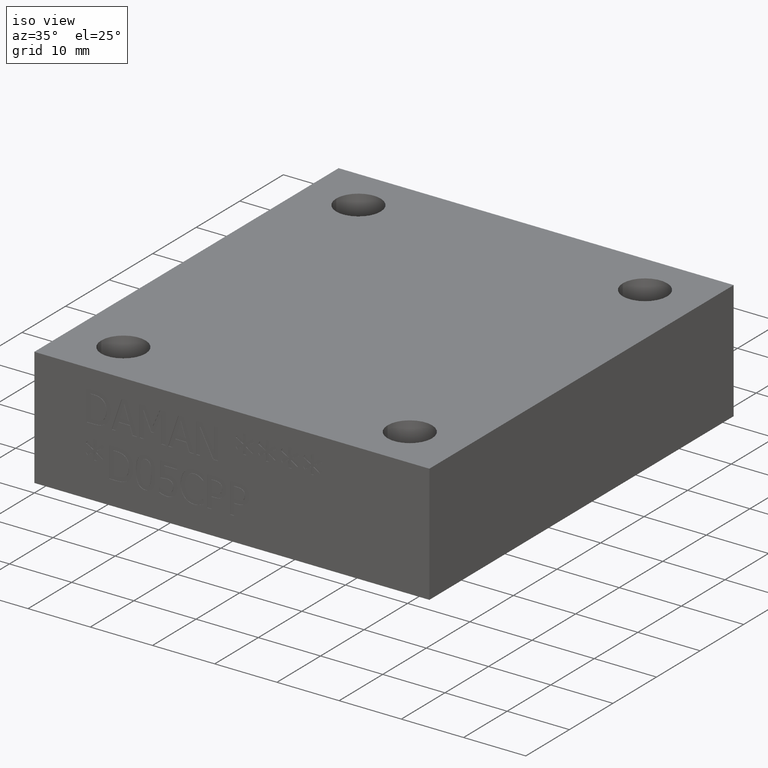
[diagram: clean part render]
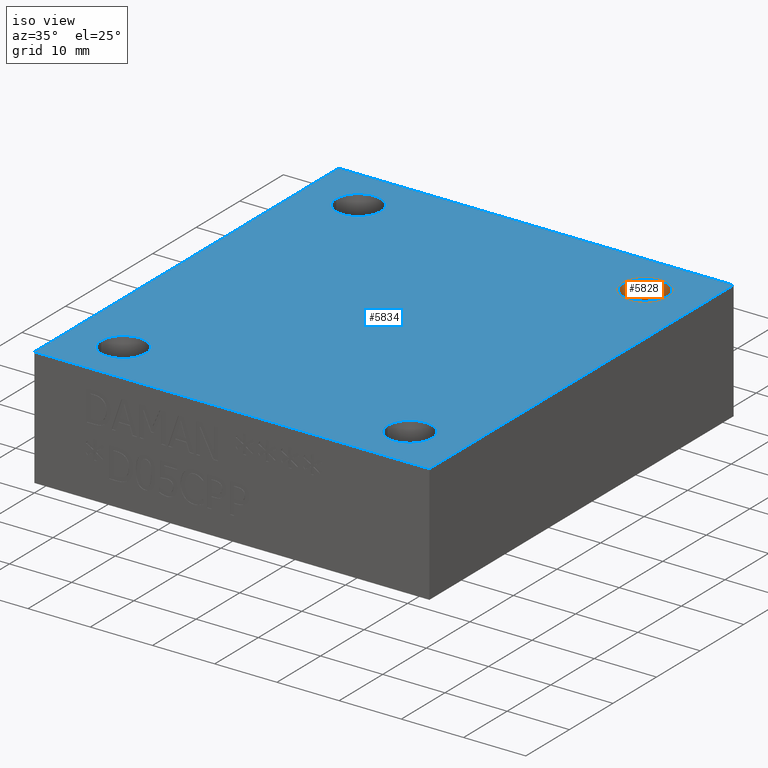
[diagram: same view with the hole feature highlighted: cylindrical wall and planar end face, labeled with their STEP entity ids]
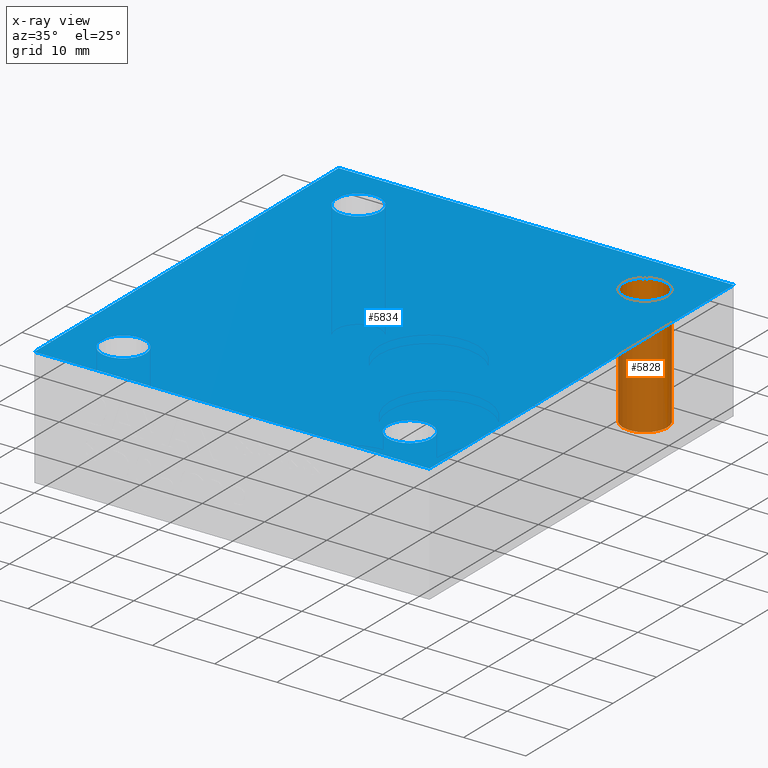
[diagram: x-ray of the same camera — body ghosted, the hole faces saturated]
A machine part, iso view. The highlighted faces form one hole feature of diameter 7.1374 mm: the cylindrical wall (entity #5828, orange) and its adjacent planar end face (entity #5834, blue) — they share a circular edge in the B-rep.
The next image is the same camera in x-ray (body ghosted, the hole faces saturated) — the bore reads through the body.
Wall:
#40=CIRCLE('',#6086,3.5687);
#41=CIRCLE('',#6087,3.5687);
#42=CIRCLE('',#6088,3.5687);
#53=CYLINDRICAL_SURFACE('',#6085,3.5687);
#581=FACE_OUTER_BOUND('',#894,.T.);
#894=EDGE_LOOP('',(#5154,#5155,#5156,#5157,#5158));
#1521=LINE('',#9755,#2137);
#2137=VECTOR('',#7183,3.5687);
#2817=VERTEX_POINT('',#9750);
#2818=VERTEX_POINT('',#9751);
#2819=VERTEX_POINT('',#9754);
#3605=EDGE_CURVE('',#2817,#2818,#40,.T.);
#3606=EDGE_CURVE('',#2818,#2817,#41,.T.);
#3607=EDGE_CURVE('',#2818,#2819,#1521,.T.);
#3608=EDGE_CURVE('',#2819,#2819,#42,.T.);
#5154=ORIENTED_EDGE('',*,*,#3605,.F.);
#5155=ORIENTED_EDGE('',*,*,#3606,.F.);
#5156=ORIENTED_EDGE('',*,*,#3607,.T.);
#5157=ORIENTED_EDGE('',*,*,#3608,.F.);
#5158=ORIENTED_EDGE('',*,*,#3607,.F.);
#5828=ADVANCED_FACE('',(#581),#53,.F.);
#6085=AXIS2_PLACEMENT_3D('',#9749,#7177,#7178);
#6086=AXIS2_PLACEMENT_3D('',#9752,#7179,#7180);
#6087=AXIS2_PLACEMENT_3D('',#9753,#7181,#7182);
#6088=AXIS2_PLACEMENT_3D('',#9756,#7184,#7185);
#7177=DIRECTION('center_axis',(0.,0.,-1.));
#7178=DIRECTION('ref_axis',(1.,0.,0.));
#7179=DIRECTION('center_axis',(0.,0.,1.));
#7180=DIRECTION('ref_axis',(1.,0.,0.));
#7181=DIRECTION('center_axis',(0.,0.,1.));
#7182=DIRECTION('ref_axis',(1.,0.,0.));
#7183=DIRECTION('',(0.,0.,1.));
#7184=DIRECTION('center_axis',(0.,0.,-1.));
#7185=DIRECTION('ref_axis',(1.,0.,0.));
#9749=CARTESIAN_POINT('Origin',(54.7878,61.9379,96.3025181394547));
#9750=CARTESIAN_POINT('',(58.3565,61.9379,0.));
#9751=CARTESIAN_POINT('',(51.2191,61.9379,0.));
#9752=CARTESIAN_POINT('Origin',(54.7878,61.9379,0.));
#9753=CARTESIAN_POINT('Origin',(54.7878,61.9379,0.));
#9754=CARTESIAN_POINT('',(51.2191,61.9379,19.05));
#9755=CARTESIAN_POINT('',(51.2191,61.9379,96.3025181394547));
#9756=CARTESIAN_POINT('Origin',(54.7878,61.9379,19.05));
End face:
#36=CIRCLE('',#6080,3.5687);
#39=CIRCLE('',#6084,3.5687);
#42=CIRCLE('',#6088,3.5687);
#45=CIRCLE('',#6092,3.5687);
#78=FACE_BOUND('',#901,.T.);
#79=FACE_BOUND('',#902,.T.);
#80=FACE_BOUND('',#903,.T.);
#81=FACE_BOUND('',#904,.T.);
#297=PLANE('',#6097);
#587=FACE_OUTER_BOUND('',#900,.T.);
#900=EDGE_LOOP('',(#5179,#5180,#5181,#5182));
#901=EDGE_LOOP('',(#5183));
#902=EDGE_LOOP('',(#5184));
#903=EDGE_LOOP('',(#5185));
#904=EDGE_LOOP('',(#5186));
#1135=LINE('',#8771,#1751);
#1524=LINE('',#9769,#2140);
#1527=LINE('',#9775,#2143);
#1530=LINE('',#9779,#2146);
#1751=VECTOR('',#6439,10.);
#2140=VECTOR('',#7198,10.);
#2143=VECTOR('',#7203,10.);
#2146=VECTOR('',#7208,10.);
#2527=VERTEX_POINT('',#8768);
#2528=VERTEX_POINT('',#8770);
#2813=VERTEX_POINT('',#9738);
#2816=VERTEX_POINT('',#9746);
#2819=VERTEX_POINT('',#9754);
#2822=VERTEX_POINT('',#9762);
#2824=VERTEX_POINT('',#9768);
#2826=VERTEX_POINT('',#9774);
#3177=EDGE_CURVE('',#2528,#2527,#1135,.T.);
#3600=EDGE_CURVE('',#2813,#2813,#36,.T.);
#3604=EDGE_CURVE('',#2816,#2816,#39,.T.);
#3608=EDGE_CURVE('',#2819,#2819,#42,.T.);
#3612=EDGE_CURVE('',#2822,#2822,#45,.T.);
#3614=EDGE_CURVE('',#2824,#2528,#1524,.T.);
#3617=EDGE_CURVE('',#2826,#2824,#1527,.T.);
#3620=EDGE_CURVE('',#2527,#2826,#1530,.T.);
#5179=ORIENTED_EDGE('',*,*,#3177,.T.);
#5180=ORIENTED_EDGE('',*,*,#3620,.T.);
#5181=ORIENTED_EDGE('',*,*,#3617,.T.);
#5182=ORIENTED_EDGE('',*,*,#3614,.T.);
#5183=ORIENTED_EDGE('',*,*,#3600,.T.);
#5184=ORIENTED_EDGE('',*,*,#3604,.T.);
#5185=ORIENTED_EDGE('',*,*,#3608,.T.);
#5186=ORIENTED_EDGE('',*,*,#3612,.T.);
#5834=ADVANCED_FACE('',(#587,#78,#79,#80,#81),#297,.T.);
#6080=AXIS2_PLACEMENT_3D('',#9740,#7166,#7167);
#6084=AXIS2_PLACEMENT_3D('',#9748,#7175,#7176);
#6088=AXIS2_PLACEMENT_3D('',#9756,#7184,#7185);
#6092=AXIS2_PLACEMENT_3D('',#9764,#7193,#7194);
#6097=AXIS2_PLACEMENT_3D('',#9781,#7211,#7212);
#6439=DIRECTION('',(1.,0.,0.));
#7166=DIRECTION('center_axis',(0.,0.,-1.));
#7167=DIRECTION('ref_axis',(1.,0.,0.));
#7175=DIRECTION('center_axis',(0.,0.,-1.));
#7176=DIRECTION('ref_axis',(1.,0.,0.));
#7184=DIRECTION('center_axis',(0.,0.,-1.));
#7185=DIRECTION('ref_axis',(1.,0.,0.));
#7193=DIRECTION('center_axis',(0.,0.,-1.));
#7194=DIRECTION('ref_axis',(1.,0.,0.));
#7198=DIRECTION('',(0.,-1.,0.));
#7203=DIRECTION('',(-1.,0.,0.));
#7208=DIRECTION('',(0.,1.,0.));
#7211=DIRECTION('center_axis',(0.,0.,1.));
#7212=DIRECTION('ref_axis',(1.,0.,0.));
#8768=CARTESIAN_POINT('',(63.5,0.,19.05));
#8770=CARTESIAN_POINT('',(0.,0.,19.05));
#8771=CARTESIAN_POINT('',(0.,0.,19.05));
#9738=CARTESIAN_POINT('',(51.2191,7.9502,19.05));
#9740=CARTESIAN_POINT('Origin',(54.7878,7.9502,19.05));
#9746=CARTESIAN_POINT('',(5.1689,61.9252,19.05));
#9748=CARTESIAN_POINT('Origin',(8.7376,61.9252,19.05));
#9754=CARTESIAN_POINT('',(51.2191,61.9379,19.05));
#9756=CARTESIAN_POINT('Origin',(54.7878,61.9379,19.05));
#9762=CARTESIAN_POINT('',(5.1816,7.9502,19.05));
#9764=CARTESIAN_POINT('Origin',(8.7503,7.9502,19.05));
#9768=CARTESIAN_POINT('',(0.,69.85,19.05));
#9769=CARTESIAN_POINT('',(0.,69.85,19.05));
#9774=CARTESIAN_POINT('',(63.5,69.85,19.05));
#9775=CARTESIAN_POINT('',(63.5,69.85,19.05));
#9779=CARTESIAN_POINT('',(63.5,0.,19.05));
#9781=CARTESIAN_POINT('Origin',(31.75,34.925,19.05));